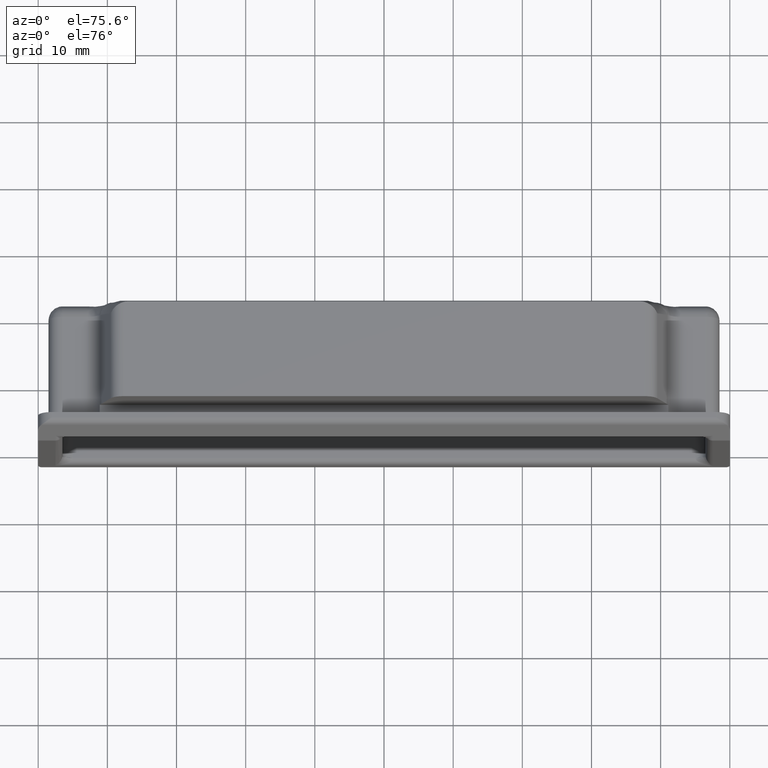
[diagram: clean part render]
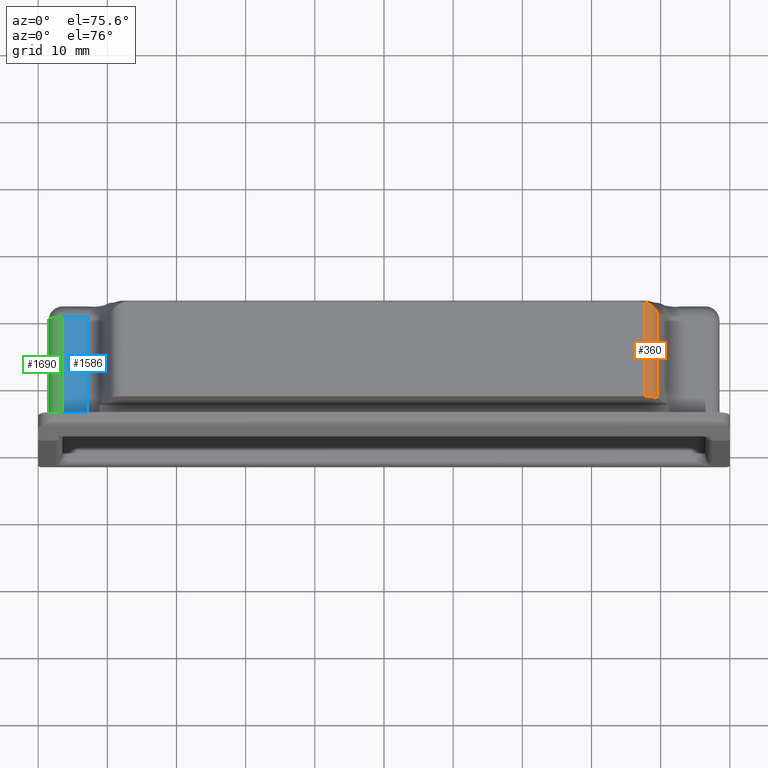
[diagram: same view with three faces highlighted in distinct colors, each labeled with its STEP entity id]
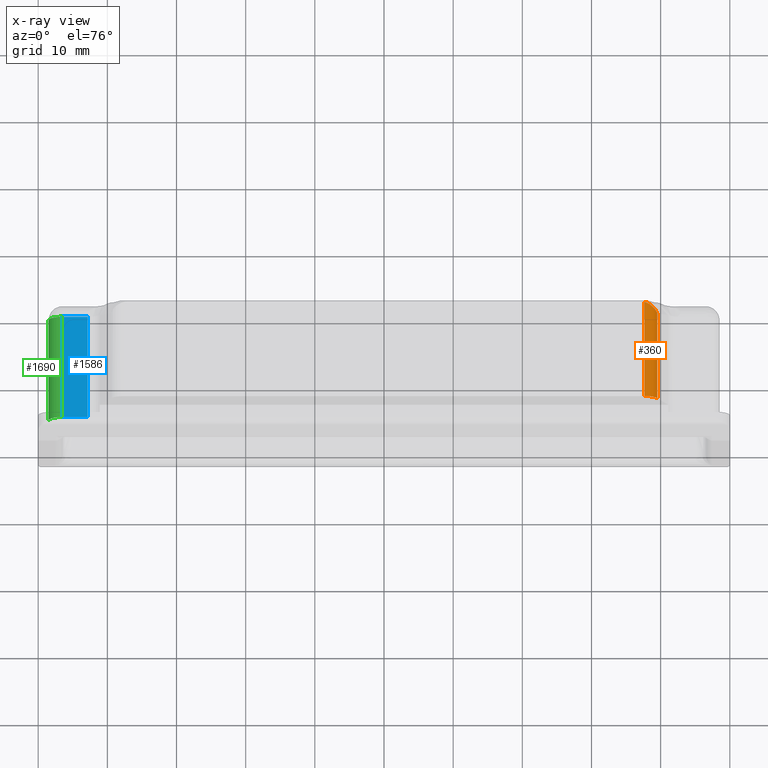
[diagram: x-ray of the same camera — body ghosted, the three highlighted faces saturated]
A machine part, auxiliary view with three faces highlighted in distinct colors.
The next image is the same camera in x-ray (body ghosted, the three faces saturated) — at least one of them is partly hidden behind the body in this view.
Their STEP definitions:

[orange] entity #360 — the highlighted cylindrical surface (edge-blend (fillet) strip) has radius 2 mm, axis along (0, -1, 0).
#28 = CARTESIAN_POINT ( 'NONE',  ( 39.51282112702599400, 14.29161646579062000, 14.51923069513756000 ) ) ;
#95 = EDGE_CURVE ( 'NONE', #2187, #1267, #2722, .T. ) ;
#101 = AXIS2_PLACEMENT_3D ( 'NONE', #503, #714, #3171 ) ;
#111 = LINE ( 'NONE', #2155, #1947 ) ;
#211 = VECTOR ( 'NONE', #1963, 1000.000000000000000 ) ;
#213 = ORIENTED_EDGE ( 'NONE', *, *, #780, .F. ) ;
#233 = EDGE_LOOP ( 'NONE', ( #763, #213, #743, #2646 ) ) ;
#360 = ADVANCED_FACE ( 'NONE', ( #1511 ), #1787, .T. ) ;
#500 = CARTESIAN_POINT ( 'NONE',  ( 39.51282112702599400, 14.29161646579062000, 14.51923069513756000 ) ) ;
#503 = CARTESIAN_POINT ( 'NONE',  ( 37.66666725000004600, 1000.000000000000000, 13.75000000000000000 ) ) ;
#534 = CARTESIAN_POINT ( 'NONE',  ( 39.44365679659302500, 14.42972169487841900, 14.68522510694133500 ) ) ;
#578 = VERTEX_POINT ( 'NONE', #28 ) ;
#642 = CARTESIAN_POINT ( 'NONE',  ( 39.34973885719366400, 14.57006579432995600, 14.84610460678612400 ) ) ;
#653 = CARTESIAN_POINT ( 'NONE',  ( 38.66791768251942300, 15.21036666537299500, 15.49221182081847200 ) ) ;
#666 = CARTESIAN_POINT ( 'NONE',  ( 38.49133134239885100, 15.32193736070463100, 15.58384225474402000 ) ) ;
#681 = CARTESIAN_POINT ( 'NONE',  ( 38.09733433009780900, 15.51950693032187100, 15.71407081000067100 ) ) ;
#714 = DIRECTION ( 'NONE',  ( 0.0000000000000000000, -1.000000000000000000, 0.0000000000000000000 ) ) ;
#737 = CARTESIAN_POINT ( 'NONE',  ( 38.98474213532244900, 14.96661050742776500, 15.26673433860455600 ) ) ;
#743 = ORIENTED_EDGE ( 'NONE', *, *, #1071, .F. ) ;
#763 = ORIENTED_EDGE ( 'NONE', *, *, #95, .F. ) ;
#780 = EDGE_CURVE ( 'NONE', #578, #2187, #2185, .T. ) ;
#882 = CARTESIAN_POINT ( 'NONE',  ( 37.66666725000004600, 15.66265427839174900, 15.75000000000000000 ) ) ;
#1071 = EDGE_CURVE ( 'NONE', #2826, #578, #1176, .T. ) ;
#1098 = CARTESIAN_POINT ( 'NONE',  ( 37.88889775540715700, 15.60121930108276300, 15.75000000000000400 ) ) ;
#1113 = CARTESIAN_POINT ( 'NONE',  ( 39.51282112702599400, 1.600000000000045200, 14.51923069513756000 ) ) ;
#1125 = CARTESIAN_POINT ( 'NONE',  ( 39.12030711326809800, 14.83789947884036300, 15.13603985941136900 ) ) ;
#1176 = B_SPLINE_CURVE_WITH_KNOTS ( 'NONE', 3,
 ( #882, #1098, #681, #666, #653, #737, #1125, #642, #534, #500 ),
 .UNSPECIFIED., .F., .F.,
 ( 4, 2, 2, 2, 4 ),
 ( 1.589900327696125400E-017, 0.0006802184836643054500, 0.001360436967328593300, 0.002040655450992881700, 0.002720873934657169300 ),
 .UNSPECIFIED. ) ;
#1267 = VERTEX_POINT ( 'NONE', #3168 ) ;
#1353 = DIRECTION ( 'NONE',  ( 0.0000000000000000000, 0.0000000000000000000, -1.000000000000000000 ) ) ;
#1511 = FACE_OUTER_BOUND ( 'NONE', #233, .T. ) ;
#1538 = EDGE_CURVE ( 'NONE', #1267, #2826, #111, .T. ) ;
#1787 = CYLINDRICAL_SURFACE ( 'NONE', #101, 2.000000000000000000 ) ;
#1947 = VECTOR ( 'NONE', #2088, 1000.000000000000000 ) ;
#1963 = DIRECTION ( 'NONE',  ( 0.0000000000000000000, -1.000000000000000000, 0.0000000000000000000 ) ) ;
#2088 = DIRECTION ( 'NONE',  ( -0.0000000000000000000, 1.000000000000000000, -0.0000000000000000000 ) ) ;
#2140 = CARTESIAN_POINT ( 'NONE',  ( 39.51282112702599400, 1000.000000000000000, 14.51923069513756000 ) ) ;
#2155 = CARTESIAN_POINT ( 'NONE',  ( 37.66666725000004600, 1000.000000000000000, 15.75000000000000000 ) ) ;
#2185 = LINE ( 'NONE', #2140, #211 ) ;
#2187 = VERTEX_POINT ( 'NONE', #1113 ) ;
#2381 = AXIS2_PLACEMENT_3D ( 'NONE', #3118, #3040, #1353 ) ;
#2543 = CARTESIAN_POINT ( 'NONE',  ( 37.66666725000004600, 15.66265427839174900, 15.75000000000000000 ) ) ;
#2646 = ORIENTED_EDGE ( 'NONE', *, *, #1538, .F. ) ;
#2722 = CIRCLE ( 'NONE', #2381, 2.000000000000000000 ) ;
#2826 = VERTEX_POINT ( 'NONE', #2543 ) ;
#3040 = DIRECTION ( 'NONE',  ( 0.0000000000000000000, -1.000000000000000000, 0.0000000000000000000 ) ) ;
#3118 = CARTESIAN_POINT ( 'NONE',  ( 37.66666725000004600, 1.600000000000045200, 13.75000000000000000 ) ) ;
#3168 = CARTESIAN_POINT ( 'NONE',  ( 37.66666725000004600, 1.600000000000080000, 15.75000000000000000 ) ) ;
#3171 = DIRECTION ( 'NONE',  ( 0.0000000000000000000, 0.0000000000000000000, -1.000000000000000000 ) ) ;

[blue] entity #1586 — the highlighted planar face has unit normal (0, 0, 1).
#49 = FACE_OUTER_BOUND ( 'NONE', #848, .T. ) ;
#210 = VECTOR ( 'NONE', #1994, 1000.000000000000000 ) ;
#328 = DIRECTION ( 'NONE',  ( 0.0000000000000000000, -1.000000000000000000, 0.0000000000000000000 ) ) ;
#435 = CARTESIAN_POINT ( 'NONE',  ( -46.50000000000000000, 14.97220075561141800, 9.749999999999888100 ) ) ;
#477 = VERTEX_POINT ( 'NONE', #435 ) ;
#607 = AXIS2_PLACEMENT_3D ( 'NONE', #869, #732, #705 ) ;
#650 = CARTESIAN_POINT ( 'NONE',  ( -42.83333274999989700, 14.97220075561141800, 9.749999999999888100 ) ) ;
#705 = DIRECTION ( 'NONE',  ( 1.000000000000000000, 0.0000000000000000000, 0.0000000000000000000 ) ) ;
#721 = VECTOR ( 'NONE', #1855, 1000.000000000000000 ) ;
#732 = DIRECTION ( 'NONE',  ( 0.0000000000000000000, 0.0000000000000000000, 1.000000000000000000 ) ) ;
#797 = VECTOR ( 'NONE', #328, 1000.000000000000000 ) ;
#847 = PLANE ( 'NONE',  #607 ) ;
#848 = EDGE_LOOP ( 'NONE', ( #2908, #1999, #1015, #1560 ) ) ;
#856 = LINE ( 'NONE', #1230, #210 ) ;
#869 = CARTESIAN_POINT ( 'NONE',  ( -41.49999935869554700, 1000.000000000000000, 9.749999999999888100 ) ) ;
#1015 = ORIENTED_EDGE ( 'NONE', *, *, #1534, .F. ) ;
#1070 = VECTOR ( 'NONE', #2139, 1000.000000000000000 ) ;
#1230 = CARTESIAN_POINT ( 'NONE',  ( -42.83333274999989700, 16.97498435543819900, 9.749999999999888100 ) ) ;
#1428 = EDGE_CURVE ( 'NONE', #1590, #477, #3097, .T. ) ;
#1534 = EDGE_CURVE ( 'NONE', #2261, #2733, #2090, .T. ) ;
#1560 = ORIENTED_EDGE ( 'NONE', *, *, #3062, .T. ) ;
#1586 = ADVANCED_FACE ( 'NONE', ( #49 ), #847, .T. ) ;
#1590 = VERTEX_POINT ( 'NONE', #650 ) ;
#1677 = CARTESIAN_POINT ( 'NONE',  ( -46.50000000000000000, 0.0000000000000000000, 9.749999999999888100 ) ) ;
#1855 = DIRECTION ( 'NONE',  ( -1.000000000000000000, -0.0000000000000000000, -0.0000000000000000000 ) ) ;
#1994 = DIRECTION ( 'NONE',  ( -0.0000000000000000000, 1.000000000000000000, -0.0000000000000000000 ) ) ;
#1999 = ORIENTED_EDGE ( 'NONE', *, *, #3115, .T. ) ;
#2027 = LINE ( 'NONE', #2069, #797 ) ;
#2069 = CARTESIAN_POINT ( 'NONE',  ( -46.50000000000000000, 1000.000000000000000, 9.749999999999888100 ) ) ;
#2090 = LINE ( 'NONE', #2340, #721 ) ;
#2139 = DIRECTION ( 'NONE',  ( -1.000000000000000000, -0.0000000000000000000, -0.0000000000000000000 ) ) ;
#2156 = CARTESIAN_POINT ( 'NONE',  ( -42.83333274999989700, 0.0000000000000000000, 9.749999999999888100 ) ) ;
#2261 = VERTEX_POINT ( 'NONE', #2156 ) ;
#2340 = CARTESIAN_POINT ( 'NONE',  ( 0.0000000000000000000, 0.0000000000000000000, 9.749999999999888100 ) ) ;
#2688 = CARTESIAN_POINT ( 'NONE',  ( -41.49999935869554700, 14.97220075561143900, 9.749999999999888100 ) ) ;
#2733 = VERTEX_POINT ( 'NONE', #1677 ) ;
#2908 = ORIENTED_EDGE ( 'NONE', *, *, #1428, .T. ) ;
#3062 = EDGE_CURVE ( 'NONE', #2261, #1590, #856, .T. ) ;
#3097 = LINE ( 'NONE', #2688, #1070 ) ;
#3115 = EDGE_CURVE ( 'NONE', #477, #2733, #2027, .T. ) ;

[green] entity #1690 — the highlighted cylindrical surface (edge-blend (fillet) strip) has radius 2 mm, axis along (0, -1, 0).
#25 = ORIENTED_EDGE ( 'NONE', *, *, #1112, .F. ) ;
#128 = DIRECTION ( 'NONE',  ( 0.0000000000000000000, 0.0000000000000000000, -1.000000000000000000 ) ) ;
#137 = DIRECTION ( 'NONE',  ( 0.0000000000000000000, -1.000000000000000000, 0.0000000000000000000 ) ) ;
#173 = AXIS2_PLACEMENT_3D ( 'NONE', #2886, #1371, #3154 ) ;
#192 = CARTESIAN_POINT ( 'NONE',  ( -46.50000000000000000, 1000.000000000000000, 7.749999999999889900 ) ) ;
#241 = CARTESIAN_POINT ( 'NONE',  ( -48.50000000000000000, 1000.000000000000000, 7.749999999999889900 ) ) ;
#245 = LINE ( 'NONE', #241, #895 ) ;
#324 = AXIS2_PLACEMENT_3D ( 'NONE', #1384, #3167, #1645 ) ;
#328 = DIRECTION ( 'NONE',  ( 0.0000000000000000000, -1.000000000000000000, 0.0000000000000000000 ) ) ;
#435 = CARTESIAN_POINT ( 'NONE',  ( -46.50000000000000000, 14.97220075561141800, 9.749999999999888100 ) ) ;
#457 = DIRECTION ( 'NONE',  ( -0.0000000000000000000, 1.000000000000000000, -0.0000000000000000000 ) ) ;
#477 = VERTEX_POINT ( 'NONE', #435 ) ;
#528 = ORIENTED_EDGE ( 'NONE', *, *, #2154, .F. ) ;
#574 = CARTESIAN_POINT ( 'NONE',  ( -48.50000000000000000, 0.0000000000000000000, 7.749999999999889900 ) ) ;
#608 = CARTESIAN_POINT ( 'NONE',  ( -48.50000000000000000, 14.97220075561143900, 7.749999999999889900 ) ) ;
#797 = VECTOR ( 'NONE', #328, 1000.000000000000000 ) ;
#895 = VECTOR ( 'NONE', #457, 1000.000000000000000 ) ;
#1112 = EDGE_CURVE ( 'NONE', #1723, #2481, #245, .T. ) ;
#1371 = DIRECTION ( 'NONE',  ( -0.0000000000000000000, -1.000000000000000000, -0.0000000000000000000 ) ) ;
#1384 = CARTESIAN_POINT ( 'NONE',  ( -46.50000000000000000, 14.97220075561143900, 7.749999999999889900 ) ) ;
#1596 = AXIS2_PLACEMENT_3D ( 'NONE', #192, #137, #128 ) ;
#1628 = FACE_OUTER_BOUND ( 'NONE', #2561, .T. ) ;
#1645 = DIRECTION ( 'NONE',  ( 0.0000000000000000000, 0.0000000000000000000, -1.000000000000000000 ) ) ;
#1677 = CARTESIAN_POINT ( 'NONE',  ( -46.50000000000000000, 0.0000000000000000000, 9.749999999999888100 ) ) ;
#1690 = ADVANCED_FACE ( 'NONE', ( #1628 ), #2894, .T. ) ;
#1723 = VERTEX_POINT ( 'NONE', #574 ) ;
#2027 = LINE ( 'NONE', #2069, #797 ) ;
#2069 = CARTESIAN_POINT ( 'NONE',  ( -46.50000000000000000, 1000.000000000000000, 9.749999999999888100 ) ) ;
#2154 = EDGE_CURVE ( 'NONE', #2733, #1723, #2682, .T. ) ;
#2200 = EDGE_CURVE ( 'NONE', #477, #2481, #2588, .T. ) ;
#2481 = VERTEX_POINT ( 'NONE', #608 ) ;
#2561 = EDGE_LOOP ( 'NONE', ( #3042, #2562, #25, #528 ) ) ;
#2562 = ORIENTED_EDGE ( 'NONE', *, *, #2200, .T. ) ;
#2588 = CIRCLE ( 'NONE', #324, 2.000000000000000000 ) ;
#2682 = CIRCLE ( 'NONE', #173, 2.000000000000000900 ) ;
#2733 = VERTEX_POINT ( 'NONE', #1677 ) ;
#2886 = CARTESIAN_POINT ( 'NONE',  ( -46.50000000000000000, 0.0000000000000000000, 7.749999999999889900 ) ) ;
#2894 = CYLINDRICAL_SURFACE ( 'NONE', #1596, 2.000000000000000000 ) ;
#3042 = ORIENTED_EDGE ( 'NONE', *, *, #3115, .F. ) ;
#3115 = EDGE_CURVE ( 'NONE', #477, #2733, #2027, .T. ) ;
#3154 = DIRECTION ( 'NONE',  ( 0.0000000000000000000, 0.0000000000000000000, 1.000000000000000000 ) ) ;
#3167 = DIRECTION ( 'NONE',  ( 0.0000000000000000000, -1.000000000000000000, 0.0000000000000000000 ) ) ;